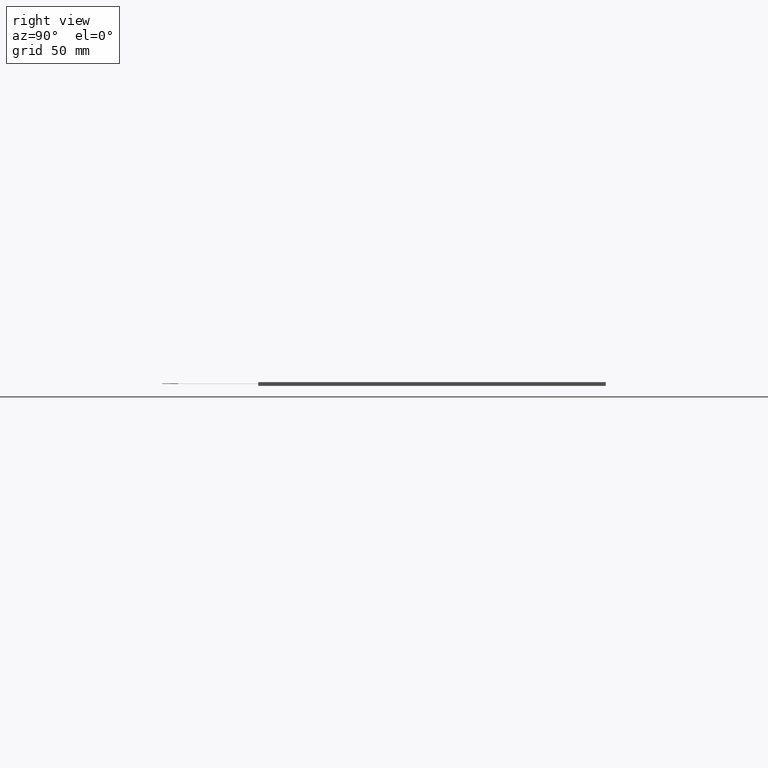
[diagram: clean part render]
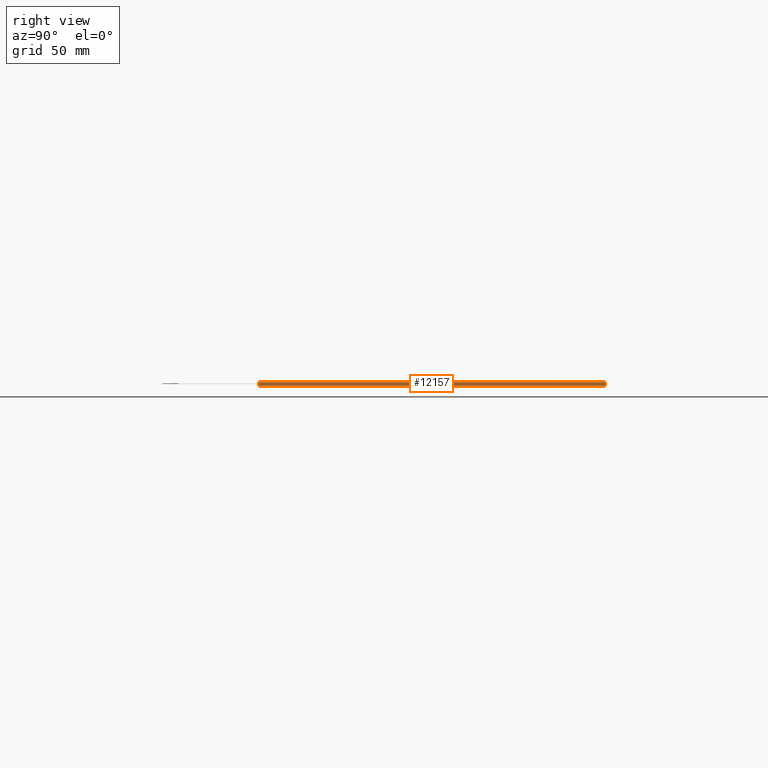
[diagram: same view with one face highlighted and labeled with its STEP entity id]
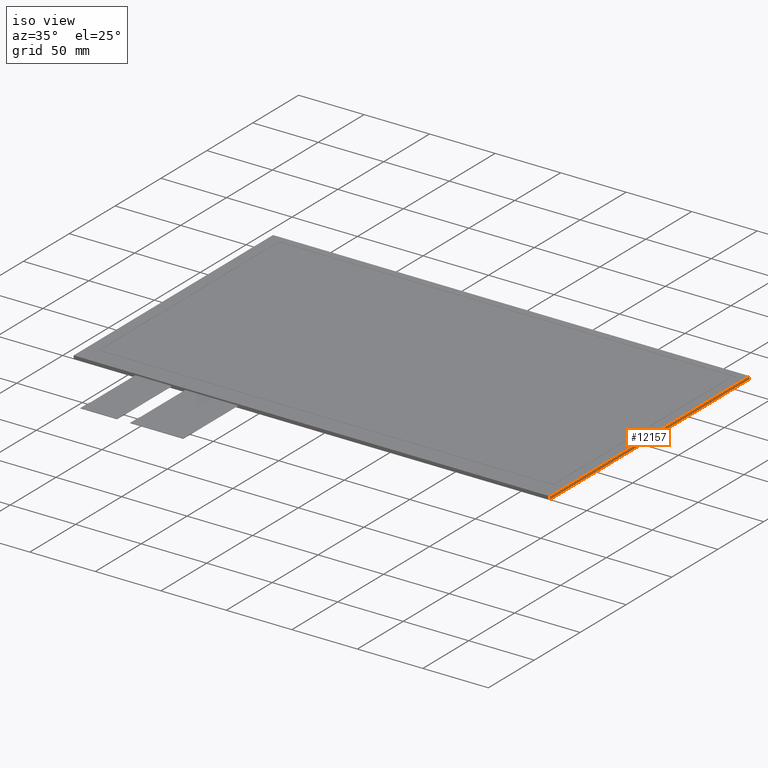
[diagram: same view with one face highlighted and labeled with its STEP entity id]
A machine part, right view. The second image highlights one B-rep face of the part: STEP entity #12157.
A second angle (iso view) of the same face is appended — the face is thin or edge-on in the first view.
In plain terms, the highlighted planar face has unit normal (1, 0, 0).
Its self-contained STEP definition (entity closure, byte-faithful):
#699=PLANE('',#12763);
#1277=FACE_OUTER_BOUND('',#1859,.T.);
#1859=EDGE_LOOP('',(#11563,#11564,#11565,#11566));
#3562=LINE('',#19069,#5270);
#3567=LINE('',#19079,#5275);
#3568=LINE('',#19082,#5276);
#3569=LINE('',#19083,#5277);
#5270=VECTOR('',#15628,10.);
#5275=VECTOR('',#15637,10.);
#5276=VECTOR('',#15640,10.);
#5277=VECTOR('',#15641,10.);
#6423=VERTEX_POINT('',#19062);
#6426=VERTEX_POINT('',#19067);
#6429=VERTEX_POINT('',#19077);
#6430=VERTEX_POINT('',#19081);
#8138=EDGE_CURVE('',#6426,#6423,#3562,.T.);
#8143=EDGE_CURVE('',#6426,#6429,#3567,.T.);
#8144=EDGE_CURVE('',#6430,#6429,#3568,.T.);
#8145=EDGE_CURVE('',#6423,#6430,#3569,.T.);
#11563=ORIENTED_EDGE('',*,*,#8138,.F.);
#11564=ORIENTED_EDGE('',*,*,#8143,.T.);
#11565=ORIENTED_EDGE('',*,*,#8144,.F.);
#11566=ORIENTED_EDGE('',*,*,#8145,.F.);
#12157=ADVANCED_FACE('',(#1277),#699,.T.);
#12763=AXIS2_PLACEMENT_3D('',#19080,#15638,#15639);
#15628=DIRECTION('',(0.,1.,0.));
#15637=DIRECTION('',(0.,0.,-1.));
#15638=DIRECTION('center_axis',(1.,0.,0.));
#15639=DIRECTION('ref_axis',(0.,-1.,0.));
#15640=DIRECTION('',(0.,-1.,0.));
#15641=DIRECTION('',(0.,0.,-1.));
#19062=CARTESIAN_POINT('',(180.5,105.2,0.));
#19067=CARTESIAN_POINT('',(180.5,-112.1,0.));
#19069=CARTESIAN_POINT('',(180.5,-112.1,0.));
#19077=CARTESIAN_POINT('',(180.5,-112.1,-2.35));
#19079=CARTESIAN_POINT('',(180.5,-112.1,0.));
#19080=CARTESIAN_POINT('Origin',(180.5,105.2,0.));
#19081=CARTESIAN_POINT('',(180.5,105.2,-2.35));
#19082=CARTESIAN_POINT('',(180.5,-112.1,-2.35));
#19083=CARTESIAN_POINT('',(180.5,105.2,0.));